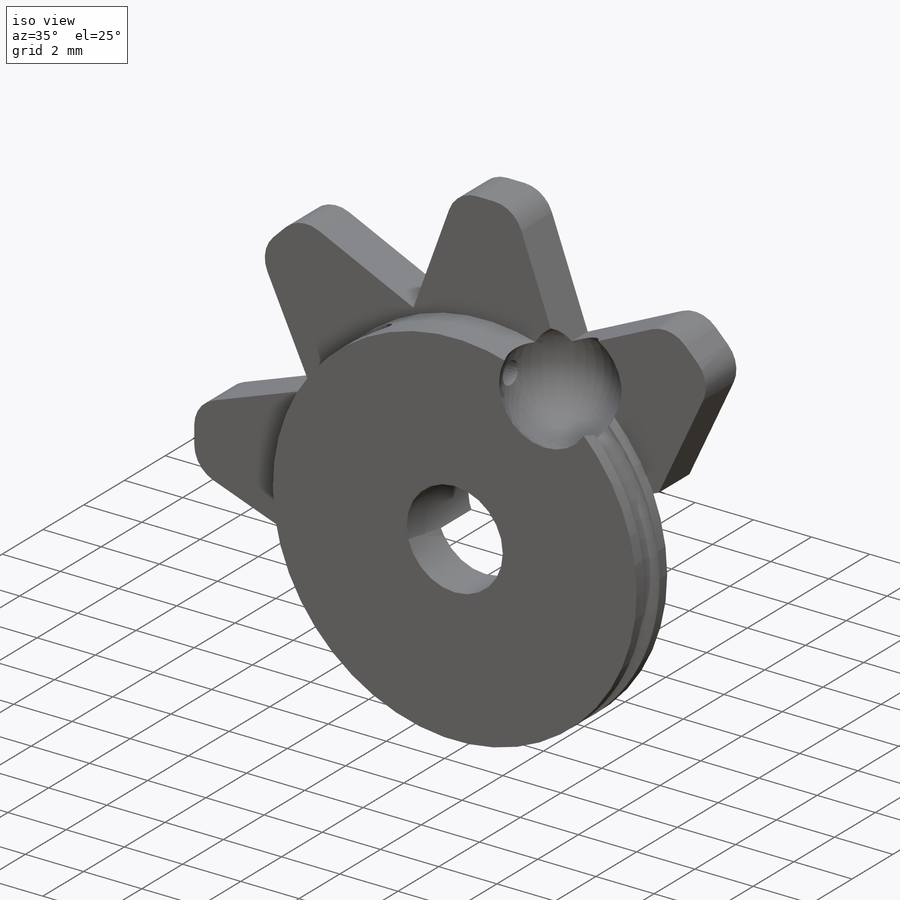
[diagram: iso view]
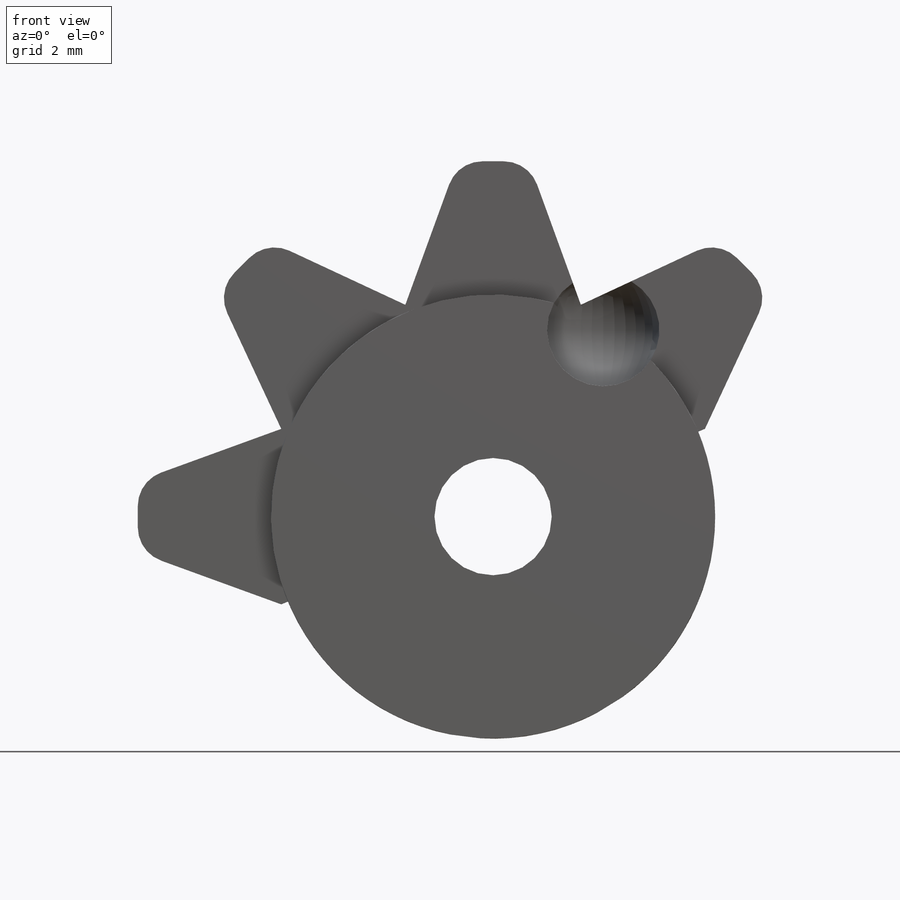
[diagram: front view]
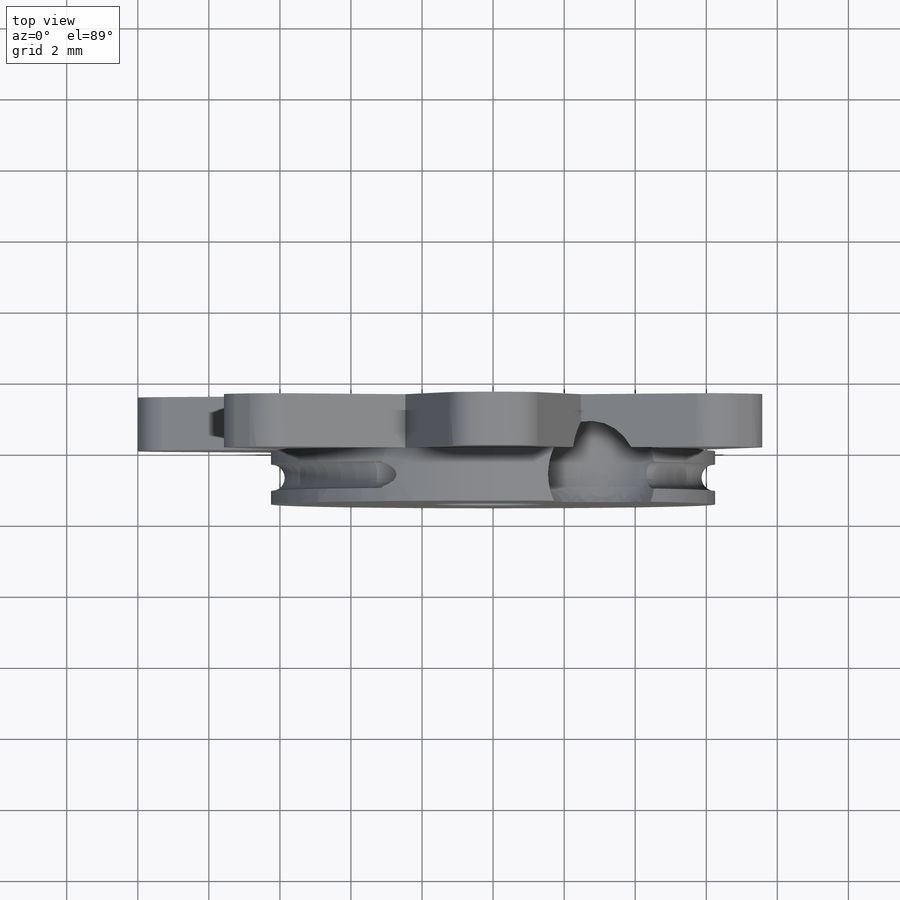
[diagram: top view]
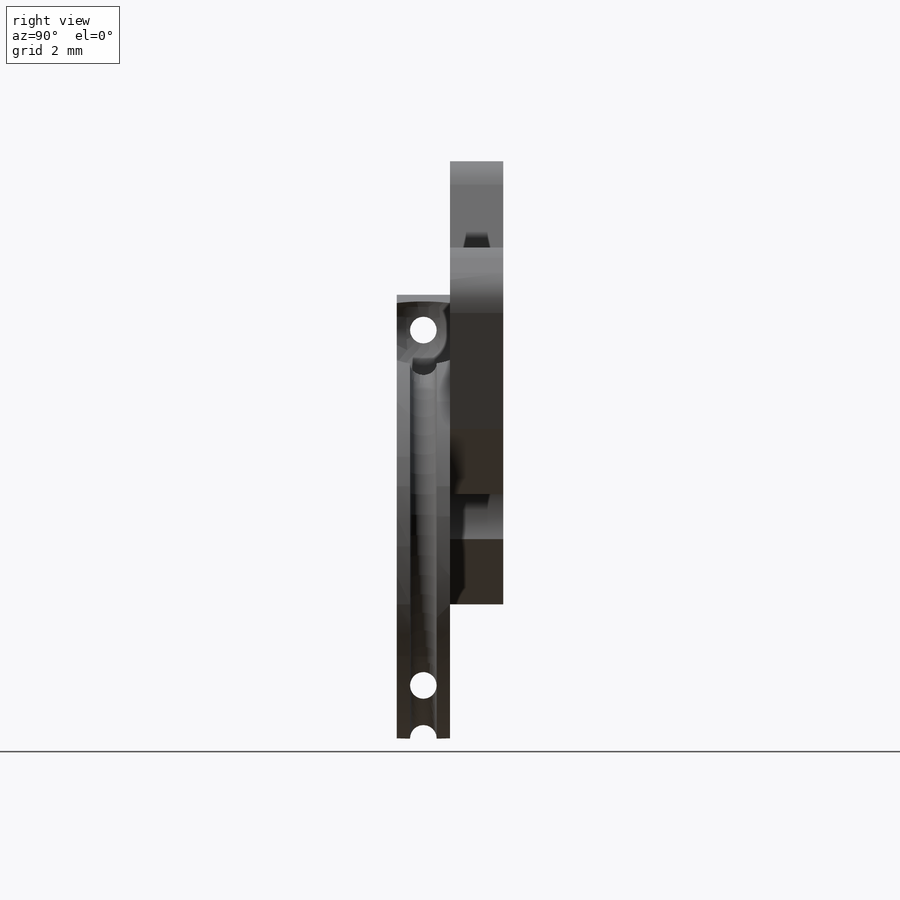
[diagram: right view]
SOLIDWORKS PART (.sldprt)
format: sldprt  version: not decoded by parser v0  size: 422,912 bytes
history: native  units: mm
features: sketch x9, plane x3, extrude x3, cut_extrude x2, material x1, sweep x1, cut_revolve x1, fillet x1 + 1 further entry (+13 scaffold rows collapsed)
feature tree (35):
  scaffold x13  (default folders/planes/origin — collapsed)
  material  "Material <not specified>"
  "Axis2"
  plane  "Plane5"
  plane  "Plane6"  Offset=3.1mm
  sketch  "Sketch1"  dims[D1=12.5mm D2=7.5mm]
  extrude  "body"  Depth=1.5mm
  sketch  "Sketch2"  dims[D1=0.75mm D3=0.75mm D4=1.5mm D2=1.0mm]
  cut_extrude  "Hole to trap cable knot"  Depth=10mm
  plane  "Plane1"  Offset=1.875mm
  sketch  "Sketch6"
  sketch  "Sketch10"  dims[c1.D1=0.5mm c1.D2=0.5mm c1.D3=0.25mm c2.D2=0.1mm c2.D3=0.0mm]
  sweep  "track for cable"
  sketch  "Sketch12"  dims[c1.D6=1.0mm c1.D1=12.5mm c1.D2=12.5mm c2.D1=30.0mm c2.D2=~11.686869mm c2.D3=~9.055896mm c3.D3=95.0deg c3.D1=20.0mm c3.D2=~3.926988mm c4.D3=~4.545682mm c4.D2=2.0mm c5.D3=5.0mm c5.D4=~3.926988mm c6.D4=110.0deg c6.D5=~3.846868mm c7.D5=110.0deg c7.D6=~3.926988mm c7.D7=~10.740701mm c7.D3=~6.472932mm c8.D7=~5.871368mm c8.D2=~3.926988mm]
  sketch  "Sketch14"  dims[D1=0.0mm D2=8.0]
  extrude  "thumb grip"  Depth=1.5mm
  sketch  "Sketch13"  dims[D1=3.3mm]
  cut_extrude  "hole for screw"  [1 undecoded]
  sketch  "Sketch20"  dims[D1=3.5mm D2=~6.142142mm]
  cut_revolve  "trap for ball"  Angle=360deg
  sketch  "Sketch21"  dims[D1=~12.891957mm]
  extrude  "lip to contact handle"  Depth=0.25mm
  fillet  "Fillet1"  Radius=0.1mm
decode coverage: 14 of 17 modeling features carry decoded parameters; 1 rows unclassified (native names shown)
note: ~ marks probable driven/reference dimensions
note: 1 parameter value undecoded
note: suppression state not decoded; provenance and decode notes live in map.json
